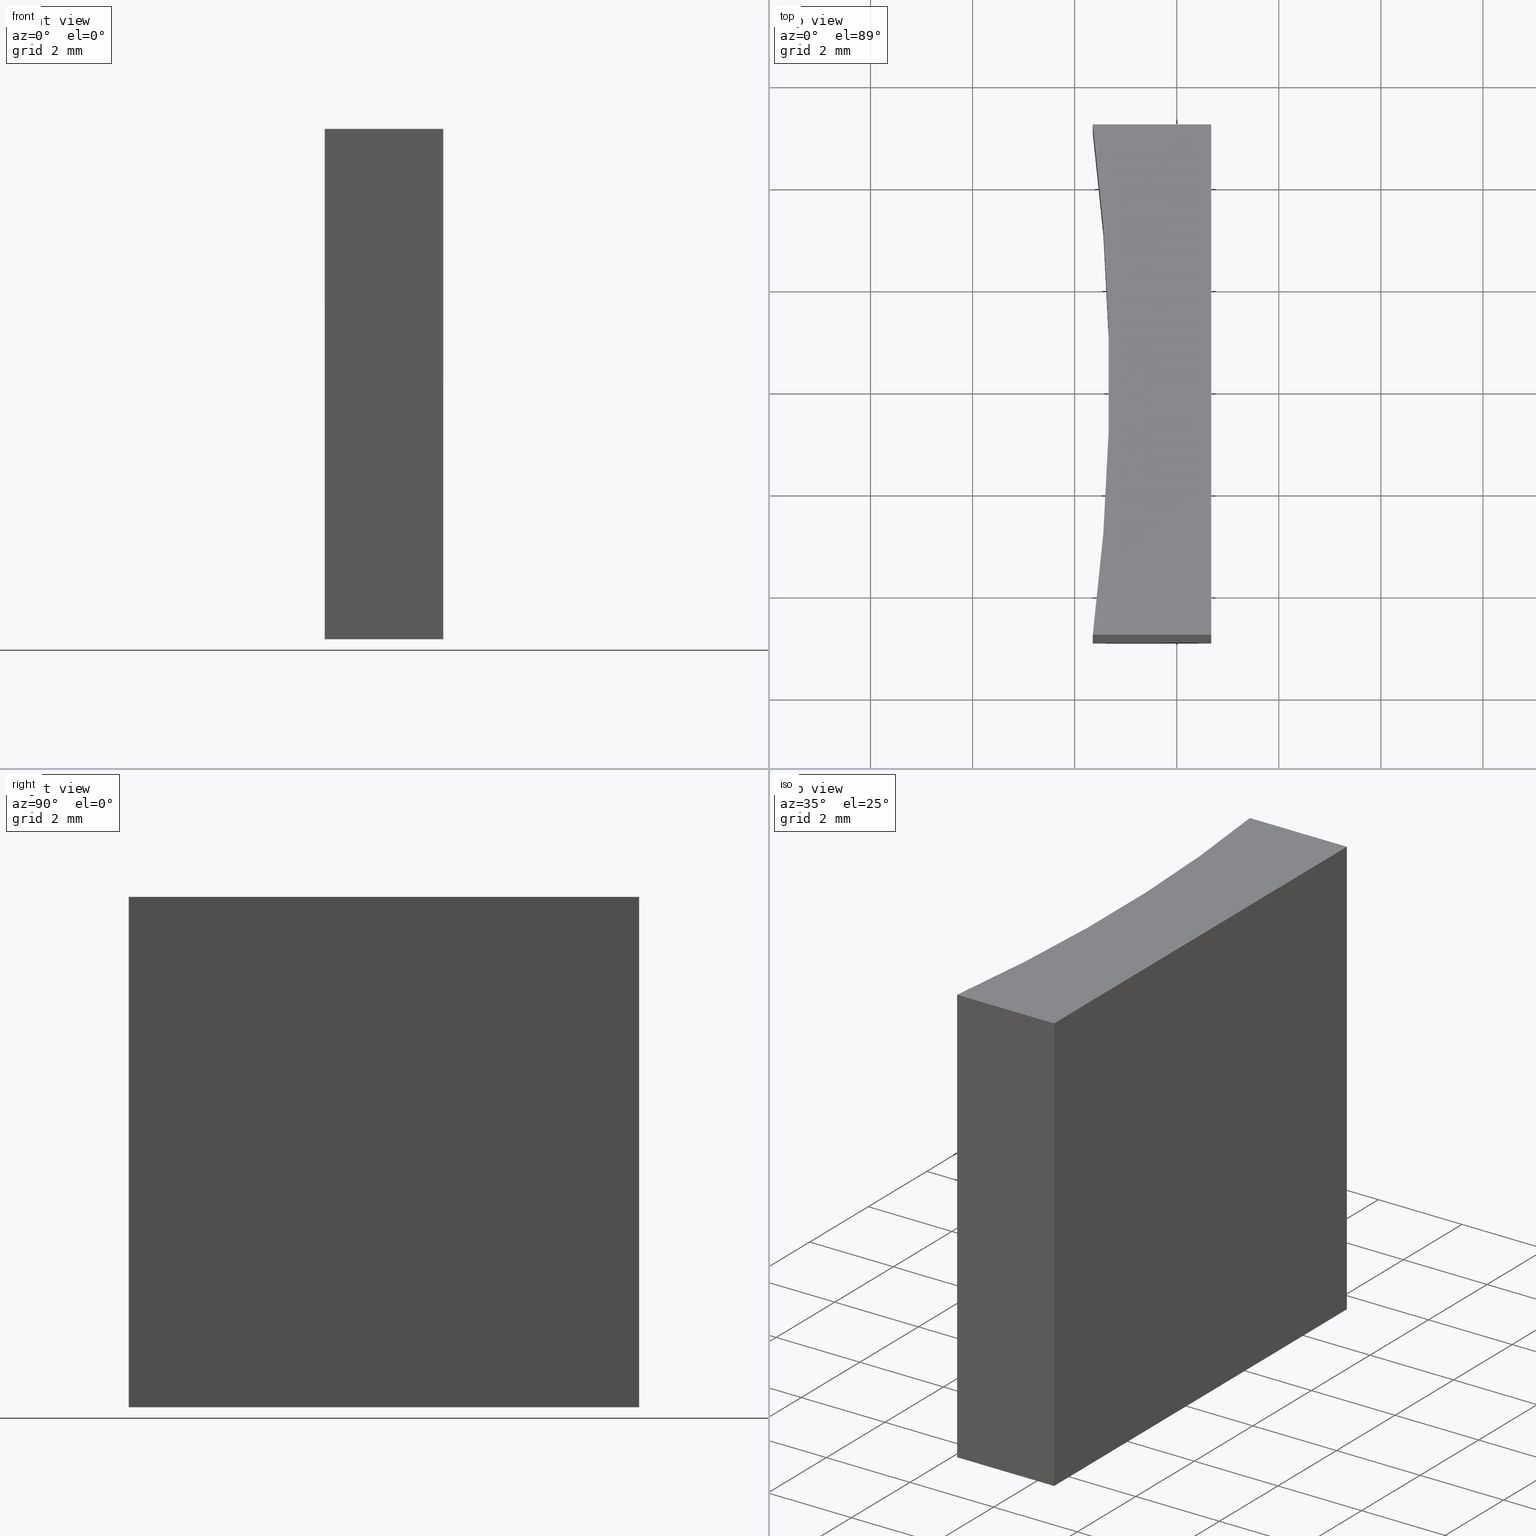
[diagram: canonical four-view strip — front | top / right | iso, engineering-drawing reading convention]
A machine part, canonical four-view strip (front | top / right | iso — engineering-drawing reading convention). The complete STEP part file that produces these views, byte-faithful:
ISO-10303-21;
HEADER;
FILE_DESCRIPTION (( 'STEP AP203' ),
    '1' );
FILE_NAME ('155567.STEP',
    '2024-05-13T05:49:10',
    ( '' ),
    ( '' ),
    'SwSTEP 2.0',
    'SolidWorks 2020',
    '' );
FILE_SCHEMA (( 'CONFIG_CONTROL_DESIGN' ));
ENDSEC;

DATA;
#1 = APPROVAL ( #12, 'δָ��' ) ;
#2 = CARTESIAN_POINT ( 'NONE',  ( -26.10075102173796324, -5.895841650131568024, 0.000000000000000000 ) ) ;
#3 = FACE_OUTER_BOUND ( 'NONE', #40, .T. ) ;
#4 = AXIS2_PLACEMENT_3D ( 'NONE', #207, #192, #69 ) ;
#5 =( NAMED_UNIT ( * ) PLANE_ANGLE_UNIT ( ) SI_UNIT ( $, .RADIAN. ) );
#6 = DIRECTION ( 'NONE',  ( -0.000000000000000000, -0.000000000000000000, -1.000000000000000000 ) ) ;
#7 =( NAMED_UNIT ( * ) SI_UNIT ( $, .STERADIAN. ) SOLID_ANGLE_UNIT ( ) );
#8 = DIRECTION ( 'NONE',  ( -1.000000000000000000, -1.734723475976807094E-16, 0.000000000000000000 ) ) ;
#9 = SECURITY_CLASSIFICATION ( '', '', #232 ) ;
#10 = EDGE_CURVE ( 'NONE', #165, #158, #72, .T. ) ;
#11 = CALENDAR_DATE ( 2024, 13, 5 ) ;
#12 = APPROVAL_STATUS ( 'not_yet_approved' ) ;
#13 = APPROVAL_ROLE ( '' ) ;
#14 = ADVANCED_FACE ( 'NONE', ( #110 ), #186, .F. ) ;
#15 = AXIS2_PLACEMENT_3D ( 'NONE', #188, #201, #25 ) ;
#16 = PRODUCT_DEFINITION ( 'δ֪', '', #153, #137 ) ;
#17 = APPLICATION_CONTEXT ( 'configuration controlled 3d designs of mechanical parts and assemblies' ) ;
#18 = LINE ( 'NONE', #163, #46 ) ;
#19 = DIRECTION ( 'NONE',  ( 0.000000000000000000, 1.000000000000000000, 0.000000000000000000 ) ) ;
#20 = DIRECTION ( 'NONE',  ( -0.000000000000000000, -0.000000000000000000, -1.000000000000000000 ) ) ;
#21 = ORIENTED_EDGE ( 'NONE', *, *, #191, .F. ) ;
#22 = APPLICATION_CONTEXT ( 'configuration controlled 3d designs of mechanical parts and assemblies' ) ;
#23 = LOCAL_TIME ( 13, 49, 10.00000000000000000, #35 ) ;
#24 = DIRECTION ( 'NONE',  ( 1.000000000000000000, 0.000000000000000000, 0.000000000000000000 ) ) ;
#25 = DIRECTION ( 'NONE',  ( 0.000000000000000000, -0.000000000000000000, -1.000000000000000000 ) ) ;
#26 = CARTESIAN_POINT ( 'NONE',  ( 12.35556705474980710, -0.8958416501315611402, 0.000000000000000000 ) ) ;
#27 = PRODUCT_DEFINITION_SHAPE ( 'NONE', 'NONE',  #16 ) ;
#28 = CARTESIAN_POINT ( 'NONE',  ( 14.67556705474980561, -0.8958416501315611402, 10.00000000000000000 ) ) ;
#29 = AXIS2_PLACEMENT_3D ( 'NONE', #2, #80, #149 ) ;
#30 = DATE_AND_TIME ( #11, #123 ) ;
#31 = CC_DESIGN_PERSON_AND_ORGANIZATION_ASSIGNMENT ( #194, #33, ( #16 ) ) ;
#32 = CALENDAR_DATE ( 2024, 13, 5 ) ;
#33 = PERSON_AND_ORGANIZATION_ROLE ( 'creator' ) ;
#34 = VECTOR ( 'NONE', #63, 1000.000000000000000 ) ;
#35 = COORDINATED_UNIVERSAL_TIME_OFFSET ( 8, 0, .AHEAD. ) ;
#36 = ADVANCED_FACE ( 'NONE', ( #109 ), #106, .F. ) ;
#37 = ORGANIZATION ( 'δָ��', 'δָ��', '' ) ;
#38 = ORIENTED_EDGE ( 'NONE', *, *, #10, .F. ) ;
#39 = FACE_OUTER_BOUND ( 'NONE', #140, .T. ) ;
#40 = EDGE_LOOP ( 'NONE', ( #239, #21, #38, #53 ) ) ;
#41 = CARTESIAN_POINT ( 'NONE',  ( 12.35556705474980710, -0.8958416501315611402, 10.00000000000000000 ) ) ;
#42 = ORIENTED_EDGE ( 'NONE', *, *, #114, .F. ) ;
#43 = LOCAL_TIME ( 13, 49, 10.00000000000000000, #216 ) ;
#44 = LINE ( 'NONE', #28, #136 ) ;
#45 = LINE ( 'NONE', #224, #162 ) ;
#46 = VECTOR ( 'NONE', #24, 1000.000000000000000 ) ;
#47 = PLANE ( 'NONE',  #178 ) ;
#48 = CYLINDRICAL_SURFACE ( 'NONE', #4, 38.77999999999999403 ) ;
#49 = CC_DESIGN_DATE_AND_TIME_ASSIGNMENT ( #193, #233, ( #9 ) ) ;
#50 = DATE_AND_TIME ( #32, #229 ) ;
#51 = VECTOR ( 'NONE', #88, 1000.000000000000000 ) ;
#52 = CALENDAR_DATE ( 2024, 13, 5 ) ;
#53 = ORIENTED_EDGE ( 'NONE', *, *, #102, .T. ) ;
#54 = ORIENTED_EDGE ( 'NONE', *, *, #114, .T. ) ;
#55 = APPROVAL_PERSON_ORGANIZATION ( #175, #81, #13 ) ;
#56 = PRODUCT_RELATED_PRODUCT_CATEGORY ( 'detail', '', ( #67 ) ) ;
#57 = DIRECTION ( 'NONE',  ( 1.000000000000000000, 0.000000000000000000, 0.000000000000000000 ) ) ;
#58 = DIRECTION ( 'NONE',  ( 1.000000000000000000, 0.000000000000000000, 0.000000000000000000 ) ) ;
#59 = CARTESIAN_POINT ( 'NONE',  ( 14.67556705474980738, -10.89584165013156181, 0.000000000000000000 ) ) ;
#60 = EDGE_LOOP ( 'NONE', ( #202, #107, #203, #148 ) ) ;
#61 = DIRECTION ( 'NONE',  ( -0.000000000000000000, -0.000000000000000000, -1.000000000000000000 ) ) ;
#62 = EDGE_LOOP ( 'NONE', ( #54, #168, #93, #121 ) ) ;
#63 = DIRECTION ( 'NONE',  ( -1.734723475976807094E-16, 1.000000000000000000, -0.000000000000000000 ) ) ;
#64 = CC_DESIGN_APPROVAL ( #1, ( #9 ) ) ;
#65 = APPLICATION_PROTOCOL_DEFINITION ( 'international standard', 'config_control_design', 1994, #22 ) ;
#66 = CC_DESIGN_PERSON_AND_ORGANIZATION_ASSIGNMENT ( #85, #84, ( #153 ) ) ;
#67 = PRODUCT ( '155567', '155567', '', ( #174 ) ) ;
#68 = FACE_OUTER_BOUND ( 'NONE', #60, .T. ) ;
#69 = DIRECTION ( 'NONE',  ( -1.000000000000000000, 0.000000000000000000, 0.000000000000000000 ) ) ;
#70 = DATE_AND_TIME ( #196, #43 ) ;
#71 = SHAPE_DEFINITION_REPRESENTATION ( #27, #83 ) ;
#72 = CIRCLE ( 'NONE', #212, 38.78000000000000114 ) ;
#73 = DIRECTION ( 'NONE',  ( 0.000000000000000000, -0.000000000000000000, 1.000000000000000000 ) ) ;
#74 = DIRECTION ( 'NONE',  ( -0.000000000000000000, -0.000000000000000000, -1.000000000000000000 ) ) ;
#75 = EDGE_CURVE ( 'NONE', #79, #180, #89, .T. ) ;
#76 = VERTEX_POINT ( 'NONE', #59 ) ;
#77 = AXIS2_PLACEMENT_3D ( 'NONE', #133, #8, #170 ) ;
#78 = CARTESIAN_POINT ( 'NONE',  ( 12.35556705474980888, -10.89584165013156181, 0.000000000000000000 ) ) ;
#79 = VERTEX_POINT ( 'NONE', #237 ) ;
#80 = DIRECTION ( 'NONE',  ( 0.000000000000000000, 0.000000000000000000, 1.000000000000000000 ) ) ;
#81 = APPROVAL ( #139, 'δָ��' ) ;
#82 = LINE ( 'NONE', #226, #209 ) ;
#83 = ADVANCED_BREP_SHAPE_REPRESENTATION ( '155567', ( #141, #134 ), #135 ) ;
#84 = PERSON_AND_ORGANIZATION_ROLE ( 'design_supplier' ) ;
#85 = PERSON_AND_ORGANIZATION ( #211, #37 ) ;
#86 = CC_DESIGN_PERSON_AND_ORGANIZATION_ASSIGNMENT ( #122, #159, ( #67 ) ) ;
#87 = AXIS2_PLACEMENT_3D ( 'NONE', #185, #19, #73 ) ;
#88 = DIRECTION ( 'NONE',  ( -1.000000000000000000, -0.000000000000000000, -0.000000000000000000 ) ) ;
#89 = LINE ( 'NONE', #167, #51 ) ;
#90 = CARTESIAN_POINT ( 'NONE',  ( -26.10075102173796324, -5.895841650131568024, 10.00000000000000000 ) ) ;
#91 = ORIENTED_EDGE ( 'NONE', *, *, #191, .T. ) ;
#92 = PLANE ( 'NONE',  #29 ) ;
#93 = ORIENTED_EDGE ( 'NONE', *, *, #118, .F. ) ;
#94 = PLANE ( 'NONE',  #77 ) ;
#95 = CC_DESIGN_APPROVAL ( #227, ( #16 ) ) ;
#96 = EDGE_CURVE ( 'NONE', #219, #76, #104, .T. ) ;
#97 = CARTESIAN_POINT ( 'NONE',  ( 12.35556705474980710, -0.8958416501315611402, 10.00000000000000000 ) ) ;
#98 = UNCERTAINTY_MEASURE_WITH_UNIT (LENGTH_MEASURE( 1.000000000000000082E-05 ), #113, 'distance_accuracy_value', 'NONE');
#99 = DATE_TIME_ROLE ( 'creation_date' ) ;
#100 = COORDINATED_UNIVERSAL_TIME_OFFSET ( 8, 0, .AHEAD. ) ;
#101 = CALENDAR_DATE ( 2024, 13, 5 ) ;
#102 = EDGE_CURVE ( 'NONE', #165, #180, #220, .T. ) ;
#103 = VERTEX_POINT ( 'NONE', #78 ) ;
#104 = LINE ( 'NONE', #130, #145 ) ;
#105 = CC_DESIGN_SECURITY_CLASSIFICATION ( #9, ( #153 ) ) ;
#106 = PLANE ( 'NONE',  #87 ) ;
#107 = ORIENTED_EDGE ( 'NONE', *, *, #129, .T. ) ;
#108 = VERTEX_POINT ( 'NONE', #147 ) ;
#109 = FACE_OUTER_BOUND ( 'NONE', #169, .T. ) ;
#110 = FACE_OUTER_BOUND ( 'NONE', #235, .T. ) ;
#111 = CC_DESIGN_PERSON_AND_ORGANIZATION_ASSIGNMENT ( #179, #117, ( #9 ) ) ;
#112 = CC_DESIGN_APPROVAL ( #81, ( #153 ) ) ;
#113 =( LENGTH_UNIT ( ) NAMED_UNIT ( * ) SI_UNIT ( .MILLI., .METRE. ) );
#114 = EDGE_CURVE ( 'NONE', #76, #79, #164, .T. ) ;
#115 = DIRECTION ( 'NONE',  ( -0.000000000000000000, -0.000000000000000000, -1.000000000000000000 ) ) ;
#116 = DIRECTION ( 'NONE',  ( 0.000000000000000000, 0.000000000000000000, 1.000000000000000000 ) ) ;
#117 = PERSON_AND_ORGANIZATION_ROLE ( 'classification_officer' ) ;
#118 = EDGE_CURVE ( 'NONE', #219, #108, #142, .T. ) ;
#119 = APPROVAL_DATE_TIME ( #30, #81 ) ;
#120 = APPROVAL_STATUS ( 'not_yet_approved' ) ;
#121 = ORIENTED_EDGE ( 'NONE', *, *, #96, .T. ) ;
#122 = PERSON_AND_ORGANIZATION ( #211, #37 ) ;
#123 = LOCAL_TIME ( 13, 49, 10.00000000000000000, #160 ) ;
#124 = ORIENTED_EDGE ( 'NONE', *, *, #96, .F. ) ;
#125 = DIRECTION ( 'NONE',  ( 1.000000000000000000, 0.000000000000000000, 0.000000000000000000 ) ) ;
#126 = VECTOR ( 'NONE', #58, 1000.000000000000000 ) ;
#127 = CARTESIAN_POINT ( 'NONE',  ( 14.67556705474980561, -0.8958416501315611402, 10.00000000000000000 ) ) ;
#128 = ORIENTED_EDGE ( 'NONE', *, *, #161, .T. ) ;
#129 = EDGE_CURVE ( 'NONE', #158, #219, #18, .T. ) ;
#130 = CARTESIAN_POINT ( 'NONE',  ( 14.67556705474980738, -10.89584165013156181, 10.00000000000000000 ) ) ;
#131 = ORIENTED_EDGE ( 'NONE', *, *, #161, .F. ) ;
#132 = DIRECTION ( 'NONE',  ( -1.000000000000000000, -0.000000000000000000, -0.000000000000000000 ) ) ;
#133 = CARTESIAN_POINT ( 'NONE',  ( 14.67556705474980561, -0.8958416501315611402, 10.00000000000000000 ) ) ;
#134 = AXIS2_PLACEMENT_3D ( 'NONE', #208, #116, #152 ) ;
#135 =( GEOMETRIC_REPRESENTATION_CONTEXT ( 3 ) GLOBAL_UNCERTAINTY_ASSIGNED_CONTEXT ( ( #98 ) ) GLOBAL_UNIT_ASSIGNED_CONTEXT ( ( #113, #5, #7 ) ) REPRESENTATION_CONTEXT ( 'NONE', 'WORKASPACE' ) );
#136 = VECTOR ( 'NONE', #115, 1000.000000000000000 ) ;
#137 = DESIGN_CONTEXT ( 'detailed design', #17, 'design' ) ;
#138 = ORIENTED_EDGE ( 'NONE', *, *, #146, .F. ) ;
#139 = APPROVAL_STATUS ( 'not_yet_approved' ) ;
#140 = EDGE_LOOP ( 'NONE', ( #138, #198, #42, #131 ) ) ;
#141 = MANIFOLD_SOLID_BREP ( '͹̨-����1', #150 ) ;
#142 = LINE ( 'NONE', #127, #204 ) ;
#143 = DIRECTION ( 'NONE',  ( -0.000000000000000000, -0.000000000000000000, -1.000000000000000000 ) ) ;
#144 = ORIENTED_EDGE ( 'NONE', *, *, #129, .F. ) ;
#145 = VECTOR ( 'NONE', #143, 1000.000000000000000 ) ;
#146 = EDGE_CURVE ( 'NONE', #180, #103, #225, .T. ) ;
#147 = CARTESIAN_POINT ( 'NONE',  ( 14.67556705474980561, -0.8958416501315611402, 10.00000000000000000 ) ) ;
#148 = ORIENTED_EDGE ( 'NONE', *, *, #206, .T. ) ;
#149 = DIRECTION ( 'NONE',  ( 1.000000000000000000, 0.000000000000000000, -0.000000000000000000 ) ) ;
#150 = CLOSED_SHELL ( 'NONE', ( #200, #36, #181, #14, #173, #156 ) ) ;
#151 = CARTESIAN_POINT ( 'NONE',  ( 14.67556705474980738, -10.89584165013156181, 10.00000000000000000 ) ) ;
#152 = DIRECTION ( 'NONE',  ( 1.000000000000000000, 0.000000000000000000, 0.000000000000000000 ) ) ;
#153 = PRODUCT_DEFINITION_FORMATION_WITH_SPECIFIED_SOURCE ( '�κ�', '', #67, .NOT_KNOWN. ) ;
#154 = DIRECTION ( 'NONE',  ( 0.000000000000000000, 0.000000000000000000, 1.000000000000000000 ) ) ;
#155 = APPROVAL_ROLE ( '' ) ;
#156 = ADVANCED_FACE ( 'NONE', ( #39 ), #92, .F. ) ;
#157 = PERSON_AND_ORGANIZATION_ROLE ( 'creator' ) ;
#158 = VERTEX_POINT ( 'NONE', #205 ) ;
#159 = PERSON_AND_ORGANIZATION_ROLE ( 'design_owner' ) ;
#160 = COORDINATED_UNIVERSAL_TIME_OFFSET ( 8, 0, .AHEAD. ) ;
#161 = EDGE_CURVE ( 'NONE', #103, #76, #218, .T. ) ;
#162 = VECTOR ( 'NONE', #6, 1000.000000000000000 ) ;
#163 = CARTESIAN_POINT ( 'NONE',  ( 12.35556705474980888, -10.89584165013156181, 10.00000000000000000 ) ) ;
#164 = LINE ( 'NONE', #182, #34 ) ;
#165 = VERTEX_POINT ( 'NONE', #97 ) ;
#166 = LOCAL_TIME ( 13, 49, 10.00000000000000000, #100 ) ;
#167 = CARTESIAN_POINT ( 'NONE',  ( 12.35556705474980710, -0.8958416501315611402, 0.000000000000000000 ) ) ;
#168 = ORIENTED_EDGE ( 'NONE', *, *, #223, .F. ) ;
#169 = EDGE_LOOP ( 'NONE', ( #128, #124, #144, #91 ) ) ;
#170 = DIRECTION ( 'NONE',  ( 1.734723475976807094E-16, -1.000000000000000000, 0.000000000000000000 ) ) ;
#171 = APPROVAL_PERSON_ORGANIZATION ( #195, #227, #214 ) ;
#172 = DIRECTION ( 'NONE',  ( 1.000000000000000000, 0.000000000000000000, -0.000000000000000000 ) ) ;
#173 = ADVANCED_FACE ( 'NONE', ( #68 ), #47, .T. ) ;
#174 = MECHANICAL_CONTEXT ( 'NONE', #22, 'mechanical' ) ;
#175 = PERSON_AND_ORGANIZATION ( #211, #37 ) ;
#176 = DATE_AND_TIME ( #52, #166 ) ;
#177 = APPROVAL_DATE_TIME ( #176, #227 ) ;
#178 = AXIS2_PLACEMENT_3D ( 'NONE', #222, #154, #172 ) ;
#179 = PERSON_AND_ORGANIZATION ( #211, #37 ) ;
#180 = VERTEX_POINT ( 'NONE', #26 ) ;
#181 = ADVANCED_FACE ( 'NONE', ( #221 ), #94, .F. ) ;
#182 = CARTESIAN_POINT ( 'NONE',  ( 14.67556705474980561, -0.8958416501315611402, 0.000000000000000000 ) ) ;
#183 = VECTOR ( 'NONE', #61, 1000.000000000000000 ) ;
#184 = CC_DESIGN_DATE_AND_TIME_ASSIGNMENT ( #50, #99, ( #16 ) ) ;
#185 = CARTESIAN_POINT ( 'NONE',  ( 12.35556705474980888, -10.89584165013156181, 10.00000000000000000 ) ) ;
#186 = PLANE ( 'NONE',  #15 ) ;
#187 = ORIENTED_EDGE ( 'NONE', *, *, #75, .T. ) ;
#188 = CARTESIAN_POINT ( 'NONE',  ( 12.35556705474980710, -0.8958416501315611402, 10.00000000000000000 ) ) ;
#189 = APPROVAL_PERSON_ORGANIZATION ( #228, #1, #155 ) ;
#190 = CC_DESIGN_PERSON_AND_ORGANIZATION_ASSIGNMENT ( #197, #157, ( #153 ) ) ;
#191 = EDGE_CURVE ( 'NONE', #158, #103, #45, .T. ) ;
#192 = DIRECTION ( 'NONE',  ( -0.000000000000000000, -0.000000000000000000, -1.000000000000000000 ) ) ;
#193 = DATE_AND_TIME ( #101, #23 ) ;
#194 = PERSON_AND_ORGANIZATION ( #211, #37 ) ;
#195 = PERSON_AND_ORGANIZATION ( #211, #37 ) ;
#196 = CALENDAR_DATE ( 2024, 13, 5 ) ;
#197 = PERSON_AND_ORGANIZATION ( #211, #37 ) ;
#198 = ORIENTED_EDGE ( 'NONE', *, *, #75, .F. ) ;
#199 = CARTESIAN_POINT ( 'NONE',  ( 12.35556705474980888, -10.89584165013156181, 0.000000000000000000 ) ) ;
#200 = ADVANCED_FACE ( 'NONE', ( #3 ), #48, .F. ) ;
#201 = DIRECTION ( 'NONE',  ( 0.000000000000000000, -1.000000000000000000, 0.000000000000000000 ) ) ;
#202 = ORIENTED_EDGE ( 'NONE', *, *, #10, .T. ) ;
#203 = ORIENTED_EDGE ( 'NONE', *, *, #118, .T. ) ;
#204 = VECTOR ( 'NONE', #217, 1000.000000000000000 ) ;
#205 = CARTESIAN_POINT ( 'NONE',  ( 12.35556705474980888, -10.89584165013156181, 10.00000000000000000 ) ) ;
#206 = EDGE_CURVE ( 'NONE', #108, #165, #82, .T. ) ;
#207 = CARTESIAN_POINT ( 'NONE',  ( -26.10075102173796324, -5.895841650131568024, 10.00000000000000000 ) ) ;
#208 = CARTESIAN_POINT ( 'NONE',  ( 0.000000000000000000, 0.000000000000000000, 0.000000000000000000 ) ) ;
#209 = VECTOR ( 'NONE', #132, 1000.000000000000000 ) ;
#210 = COORDINATED_UNIVERSAL_TIME_OFFSET ( 8, 0, .AHEAD. ) ;
#211 = PERSON ( 'δָ��', 'δָ��', 'δָ��', ('δָ��'), ('δָ��'), ('δָ��') ) ;
#212 = AXIS2_PLACEMENT_3D ( 'NONE', #90, #20, #125 ) ;
#213 = APPLICATION_PROTOCOL_DEFINITION ( 'international standard', 'config_control_design', 1994, #17 ) ;
#214 = APPROVAL_ROLE ( '' ) ;
#215 = ORIENTED_EDGE ( 'NONE', *, *, #223, .T. ) ;
#216 = COORDINATED_UNIVERSAL_TIME_OFFSET ( 8, 0, .AHEAD. ) ;
#217 = DIRECTION ( 'NONE',  ( -1.734723475976807094E-16, 1.000000000000000000, -0.000000000000000000 ) ) ;
#218 = LINE ( 'NONE', #199, #126 ) ;
#219 = VERTEX_POINT ( 'NONE', #151 ) ;
#220 = LINE ( 'NONE', #41, #183 ) ;
#221 = FACE_OUTER_BOUND ( 'NONE', #62, .T. ) ;
#222 = CARTESIAN_POINT ( 'NONE',  ( -26.10075102173796324, -5.895841650131568024, 10.00000000000000000 ) ) ;
#223 = EDGE_CURVE ( 'NONE', #108, #79, #44, .T. ) ;
#224 = CARTESIAN_POINT ( 'NONE',  ( 12.35556705474980888, -10.89584165013156181, 10.00000000000000000 ) ) ;
#225 = CIRCLE ( 'NONE', #234, 38.78000000000000114 ) ;
#226 = CARTESIAN_POINT ( 'NONE',  ( 12.35556705474980710, -0.8958416501315611402, 10.00000000000000000 ) ) ;
#227 = APPROVAL ( #120, 'δָ��' ) ;
#228 = PERSON_AND_ORGANIZATION ( #211, #37 ) ;
#229 = LOCAL_TIME ( 13, 49, 10.00000000000000000, #210 ) ;
#230 = APPROVAL_DATE_TIME ( #70, #1 ) ;
#231 = ORIENTED_EDGE ( 'NONE', *, *, #102, .F. ) ;
#232 = SECURITY_CLASSIFICATION_LEVEL ( 'unclassified' ) ;
#233 = DATE_TIME_ROLE ( 'classification_date' ) ;
#234 = AXIS2_PLACEMENT_3D ( 'NONE', #236, #74, #57 ) ;
#235 = EDGE_LOOP ( 'NONE', ( #187, #231, #238, #215 ) ) ;
#236 = CARTESIAN_POINT ( 'NONE',  ( -26.10075102173796324, -5.895841650131568024, 0.000000000000000000 ) ) ;
#237 = CARTESIAN_POINT ( 'NONE',  ( 14.67556705474980561, -0.8958416501315611402, 0.000000000000000000 ) ) ;
#238 = ORIENTED_EDGE ( 'NONE', *, *, #206, .F. ) ;
#239 = ORIENTED_EDGE ( 'NONE', *, *, #146, .T. ) ;
ENDSEC;
END-ISO-10303-21;
